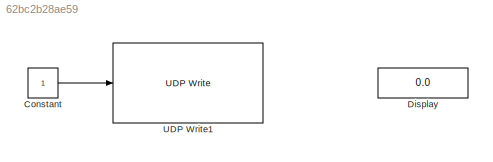
MODEL slx_62bc2b28ae59
KIND model
CONFIG AbsTol = auto
CONFIG EnableMultiTasking = off
CONFIG FixedStep = auto
CONFIG MaxStep = auto
CONFIG MinStep = auto
CONFIG RelTol = 1e-3
CONFIG SampleTimeConstraint = Unconstrained
CONFIG Solver = VariableStepAuto
CONFIG SolverName = VariableStepAuto
CONFIG StartTime = 0.0
CONFIG StopTime = 10.0
BLOCK [Constant] Constant
BLOCK [Display] Display
  Decimation = 1
  Ports = [1]
BLOCK [Reference] UDP Write1  REF=prociolib/UDP Write
  Ports = [1, 1]
  SourceBlock = prociolib/UDP Write
  SourceProductBaseCode = HW
  SourceType = UDP Write
LINE Constant:1 -> UDP Write1:1
